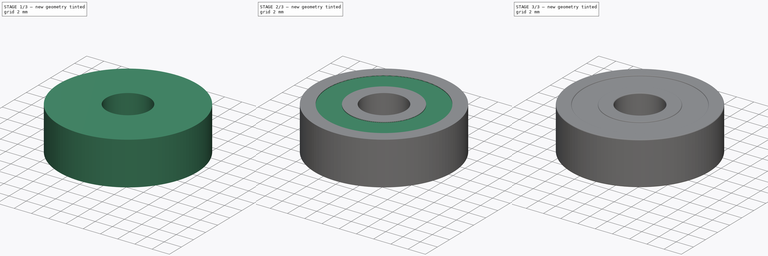
[diagram: build sequence overview — one tinted view per stage of 3, left to right]
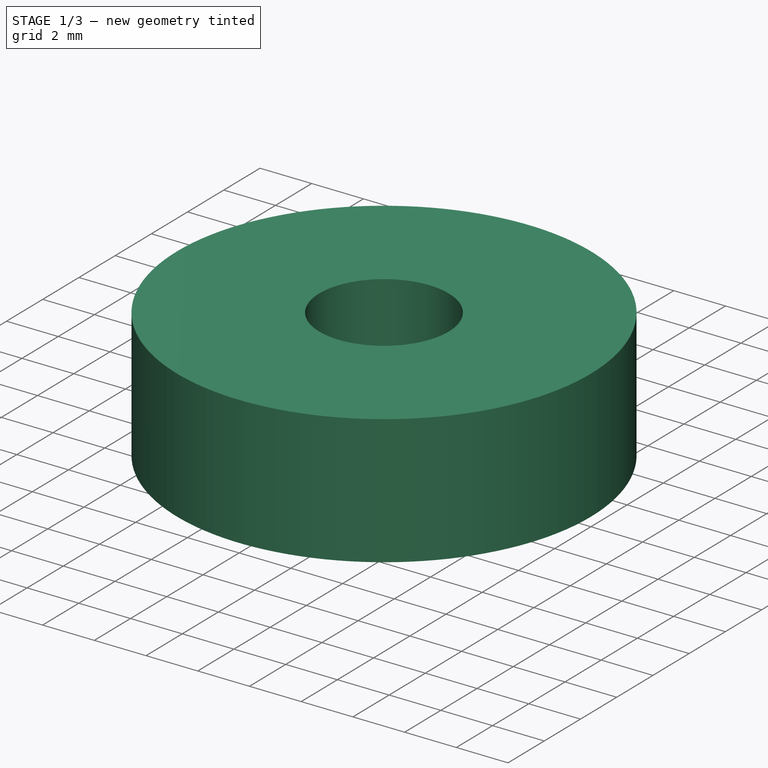
[diagram: stage 1 of 3 — iso view after this stage's code; geometry added in this stage tinted green]
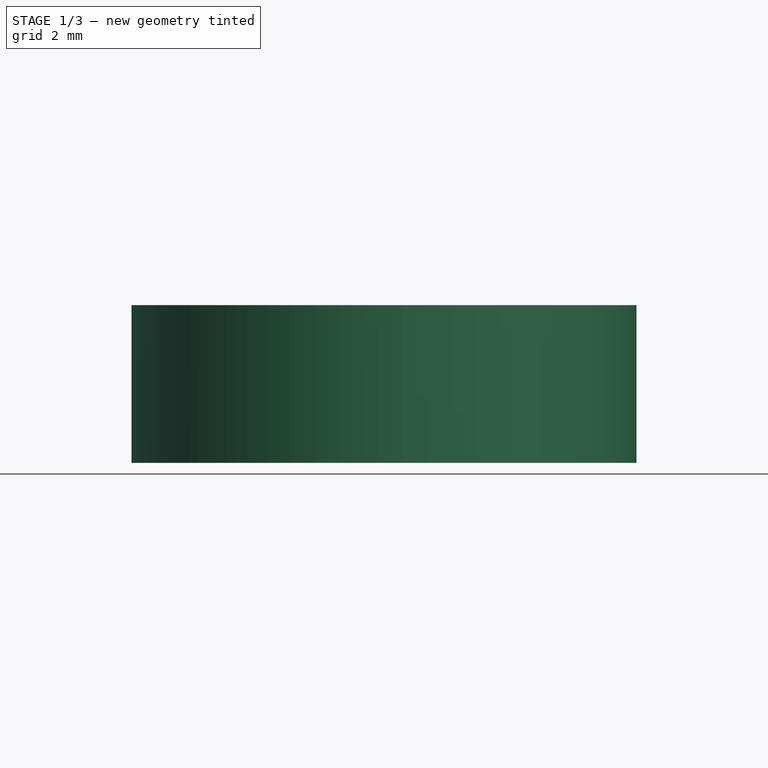
[diagram: stage 1 of 3 — front view after this stage's code; geometry added in this stage tinted green]
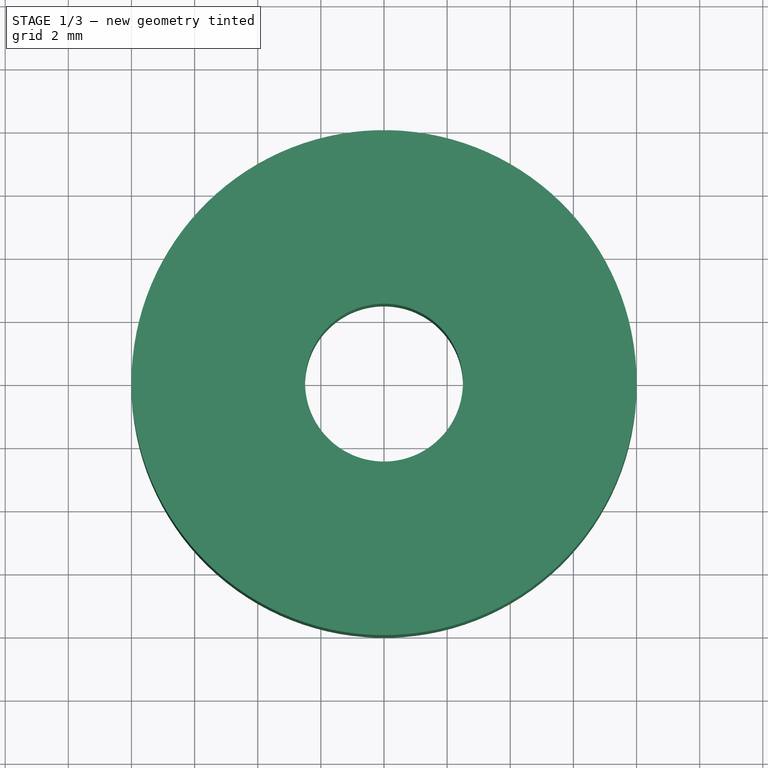
[diagram: stage 1 of 3 — top view after this stage's code; geometry added in this stage tinted green]
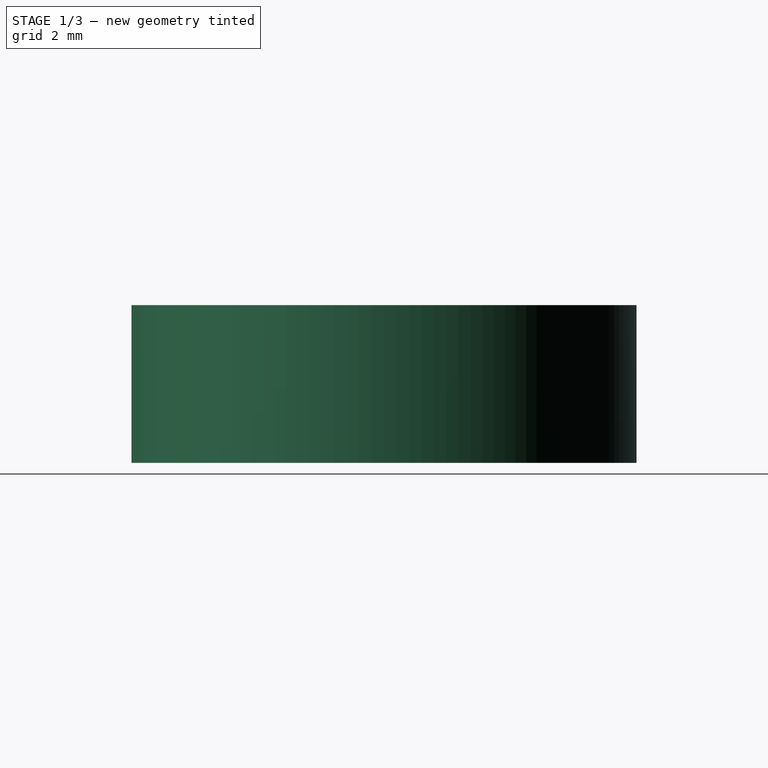
[diagram: stage 1 of 3 — right view after this stage's code; geometry added in this stage tinted green]
FCSTD DOCUMENT  (FreeCAD 0.16R6712 (Git))
Label: DIN625-1_625-ZZ
License: CreativeCommons Attribution-ShareAlike
LicenseURL: http://creativecommons.org/licenses/by-sa/4.0/
objects: Sketcher::SketchObject×4, PartDesign::Pocket×3, App::MeasureDistance×1, PartDesign::Pad×1, PartDesign::Fillet×1, Part::Feature×1
note: 14 computed .brp shape members not serialized (recipe doc carries the construction recipe); baked Part::Feature solids carry a one-line shape summary decoded from their .brp

FEATURE [App::MeasureDistance] Distance  label="Distance: 1.875"
  Distance = 1.87463
  P1 = (4.39378,2.64981,2.46999)
  P2 = (2.83695,1.60597,2.5)
FEATURE [Sketcher::SketchObject] Sketch
  sketch-geometry (1):
    g0: Circle CenterX=0 CenterY=0 CenterZ=0 NormalX=0 NormalY=0 NormalZ=1 Radius=8
  constraints (1):
    c: Radius(g0) = 8
FEATURE [PartDesign::Pad] Pad
  Length = 5
  Length2 = 100
  Sketch = -> Sketch
  Type = 0
FEATURE [Sketcher::SketchObject] Sketch001
  Placement = pos=(0,0,5) rot=(0,0,1;0rad)
  Support = -> Pad [Face3]
  sketch-geometry (1):
    g0: Circle CenterX=0 CenterY=0 CenterZ=0 NormalX=0 NormalY=0 NormalZ=1 Radius=2.5
  constraints (1):
    c: Radius(g0) = 2.5
FEATURE [PartDesign::Pocket] Pocket
  Length = 5
  Sketch = -> Sketch001
  Type = 1
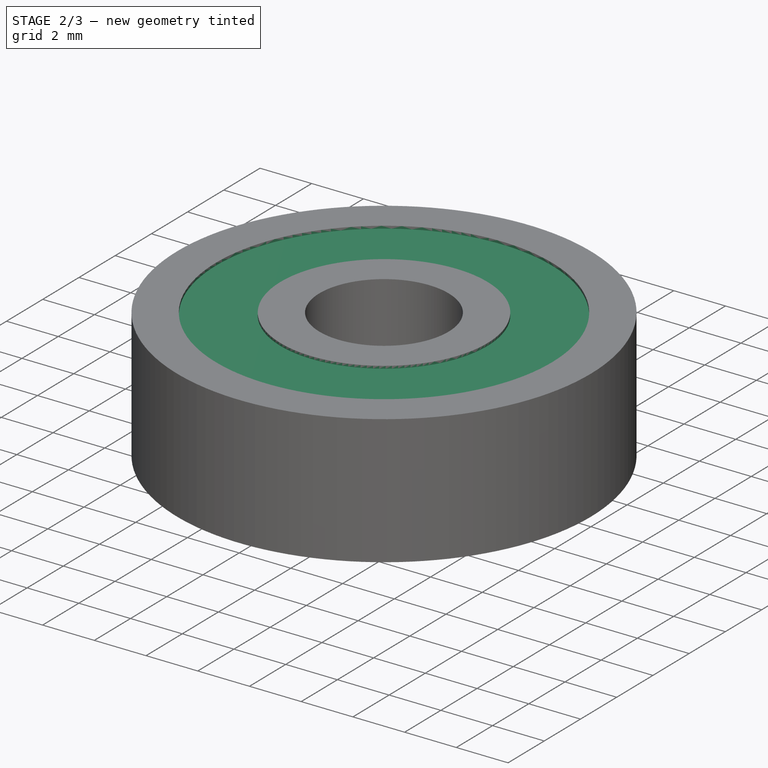
[diagram: stage 2 of 3 — iso view after this stage's code; geometry added in this stage tinted green]
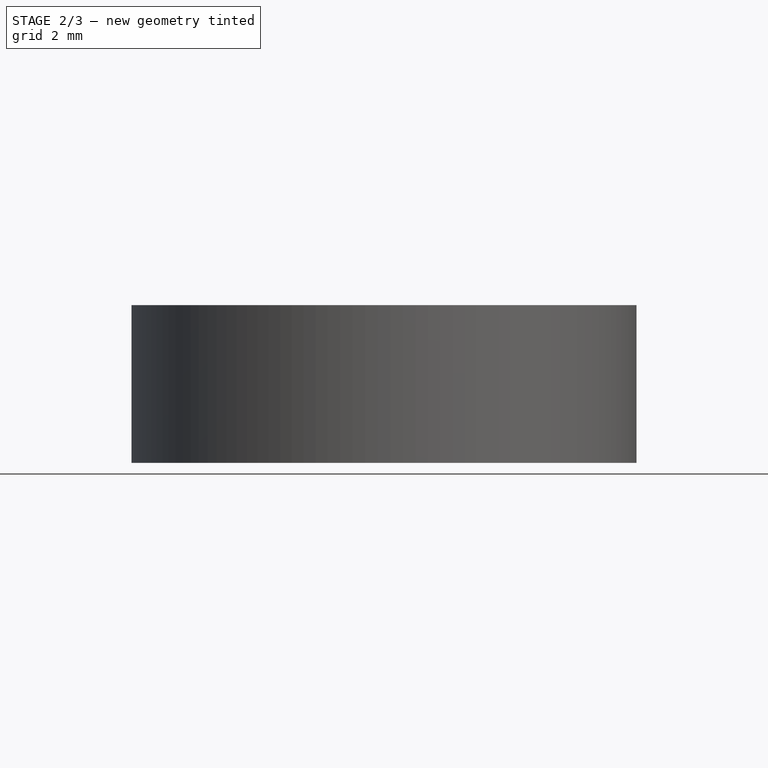
[diagram: stage 2 of 3 — front view after this stage's code; geometry added in this stage tinted green]
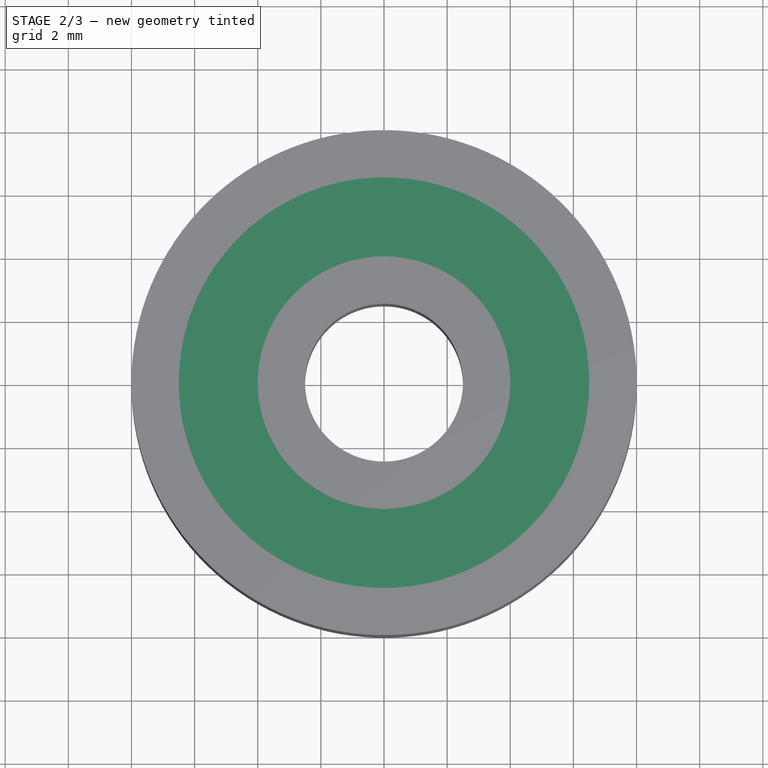
[diagram: stage 2 of 3 — top view after this stage's code; geometry added in this stage tinted green]
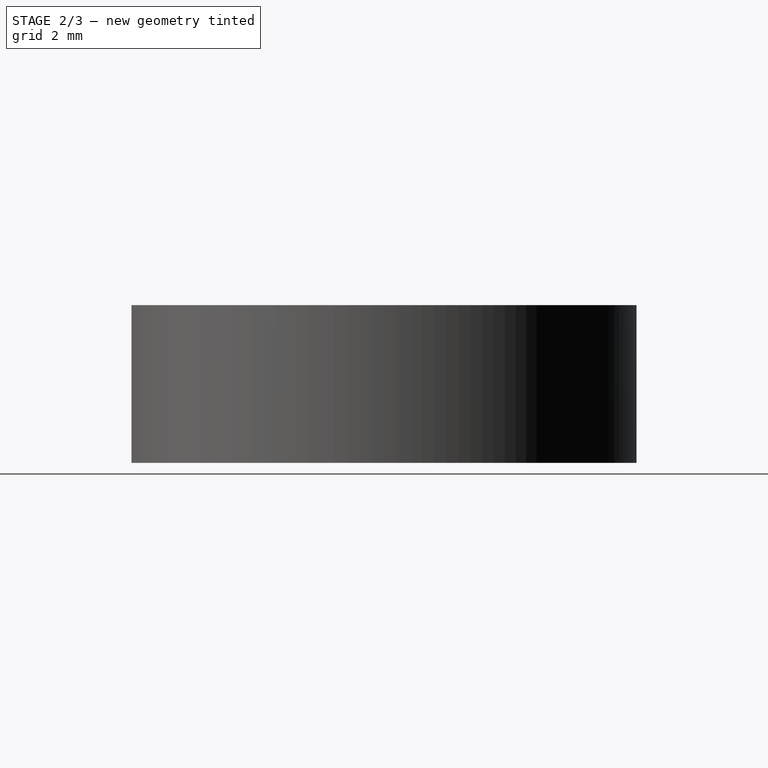
[diagram: stage 2 of 3 — right view after this stage's code; geometry added in this stage tinted green]
FEATURE [Sketcher::SketchObject] Sketch002
  Placement = pos=(0,0,5) rot=(0,0,1;0rad)
  Support = -> Pocket [Face3]
  sketch-geometry (2):
    g0: Circle CenterX=0 CenterY=0 CenterZ=0 NormalX=0 NormalY=0 NormalZ=1 Radius=6.5
    g1: Circle CenterX=0 CenterY=0 CenterZ=0 NormalX=0 NormalY=0 NormalZ=1 Radius=4
  constraints (4):
    c: Coincident(g1,g-1)
    c: Radius(g1) = 4
    c: Radius(g0) = 6.5
    c: Coincident(g0,g-1)
FEATURE [PartDesign::Pocket] Pocket001
  Length = 0.1
  Sketch = -> Sketch002
  Type = 0
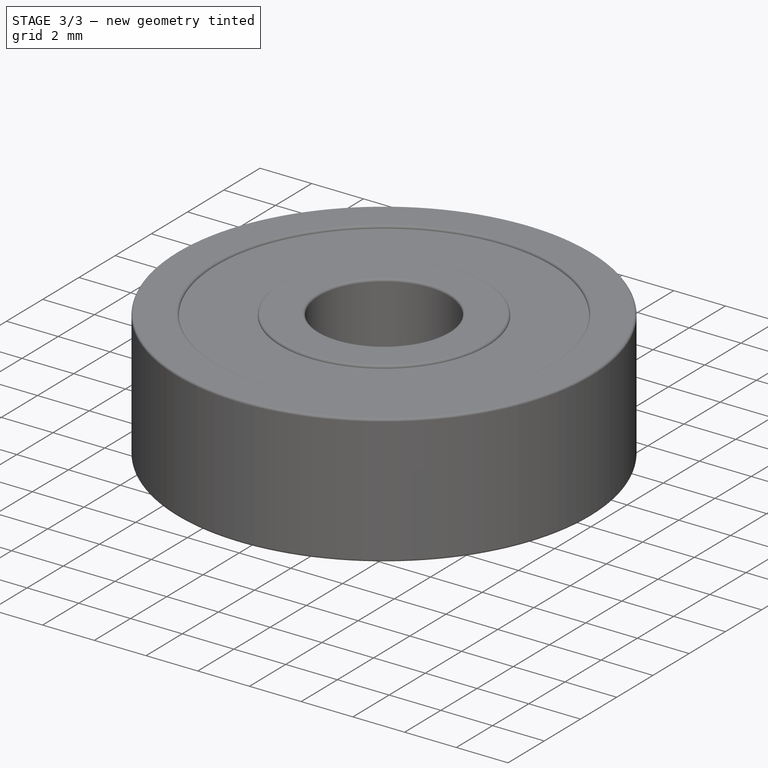
[diagram: stage 3 of 3 — iso view after this stage's code; geometry added in this stage tinted green]
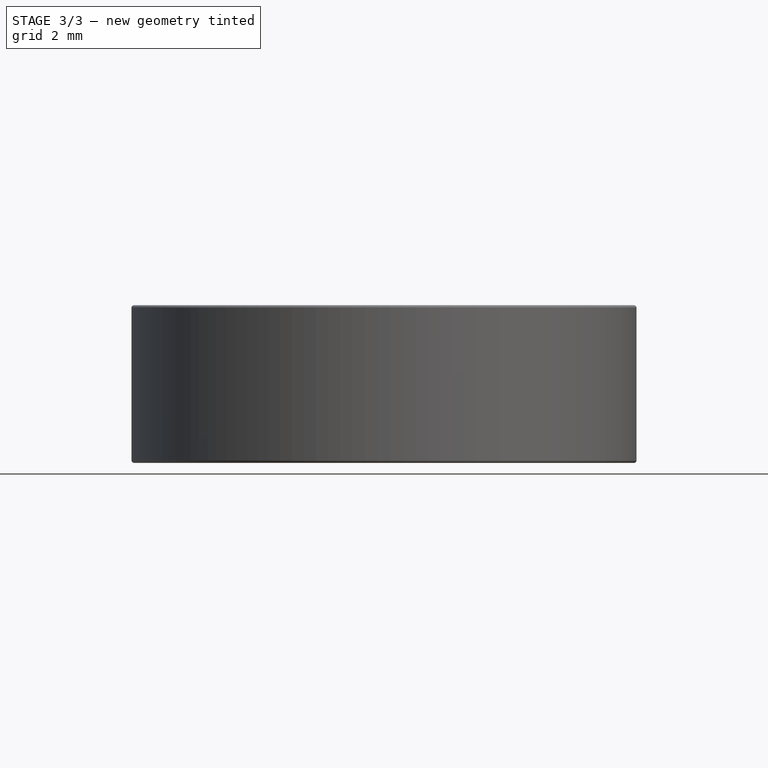
[diagram: stage 3 of 3 — front view after this stage's code; geometry added in this stage tinted green]
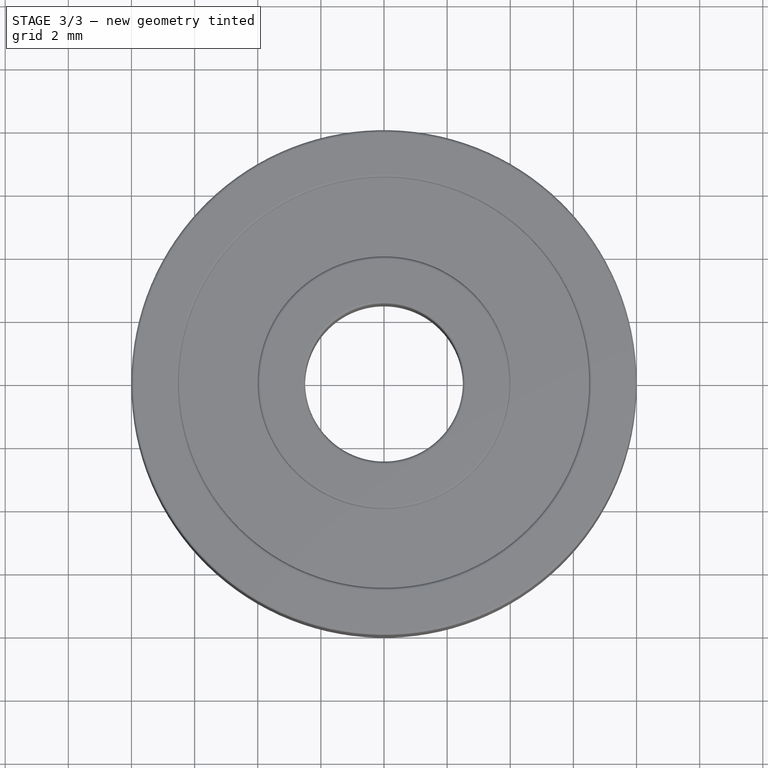
[diagram: stage 3 of 3 — top view after this stage's code; geometry added in this stage tinted green]
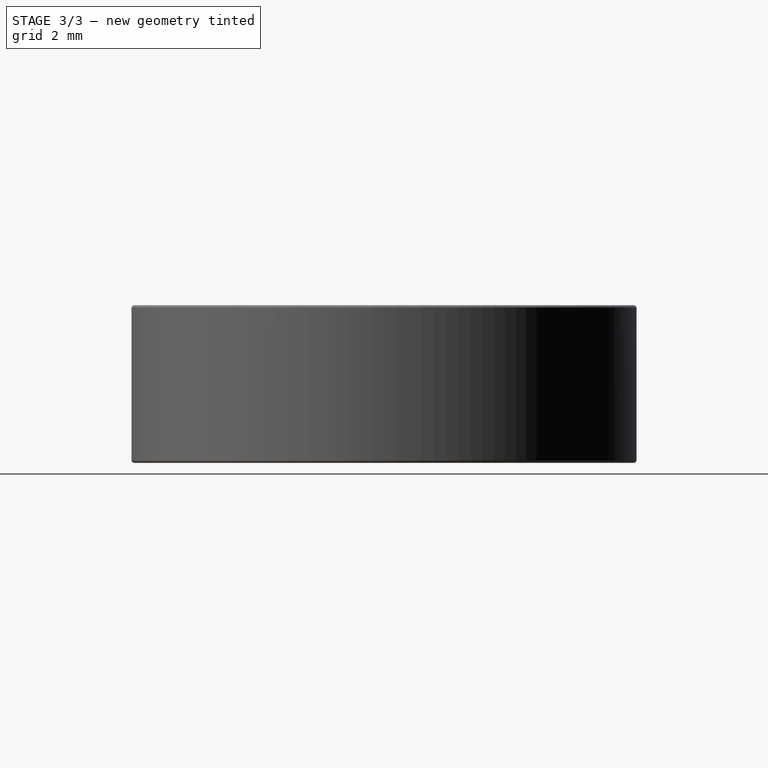
[diagram: stage 3 of 3 — right view after this stage's code; geometry added in this stage tinted green]
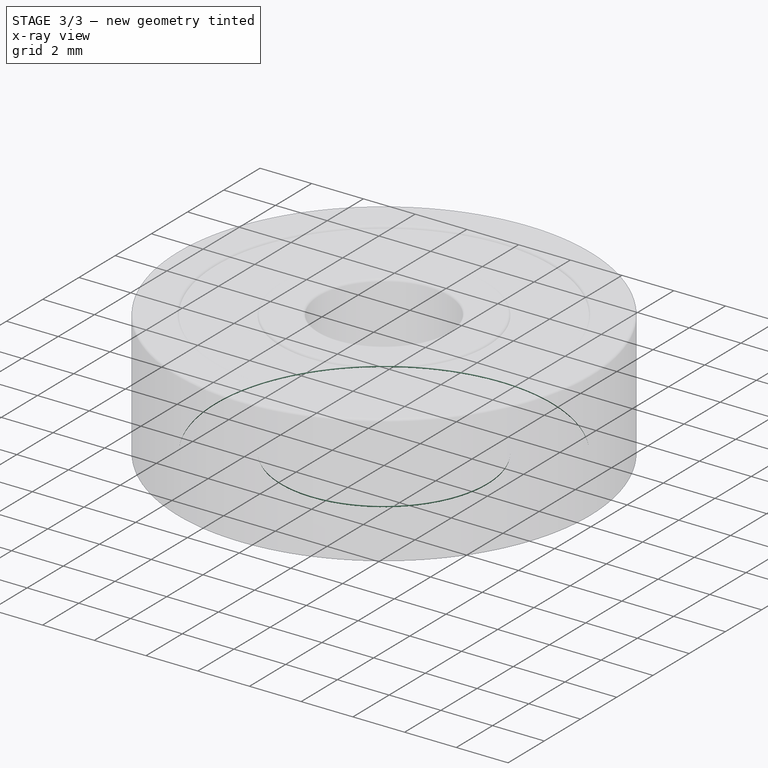
[diagram: stage 3 of 3 — x-ray composite at the iso view; earlier geometry ghosted, this stage's added geometry solid]
FEATURE [Sketcher::SketchObject] Sketch003
  Placement = pos=(0,0,0) rot=(1,0,0;3.14159rad)
  Support = -> Pocket001 [Face2]
  sketch-geometry (2):
    g0: Circle CenterX=0 CenterY=0 CenterZ=0 NormalX=0 NormalY=0 NormalZ=1 Radius=4
    g1: Circle CenterX=0 CenterY=0 CenterZ=0 NormalX=0 NormalY=0 NormalZ=1 Radius=6.5
  constraints (4):
    c: Radius(g0) = 4
    c: Radius(g1) = 6.5
    c: Coincident(g1,g-1)
    c: Coincident(g0,g-1)
FEATURE [PartDesign::Pocket] Pocket002
  Length = 0.1
  Sketch = -> Sketch003
  Type = 0
FEATURE [PartDesign::Fillet] Fillet
  Base = -> Pocket002 [Edge3,Edge5,Edge14,Edge17,Edge2,Edge4,Edge12,Edge16]
  Radius = 0.09
FEATURE [Part::Feature] BOLTS_part001  label="Ball bearing DIN625-1 625-ZZ"
  Placement = pos=(0,0,2.5) rot=(0,0,1;0rad)
  shape: bbox 17.32 x 17.32 x 2.5 mm, 20 faces, 3 solids (baked)
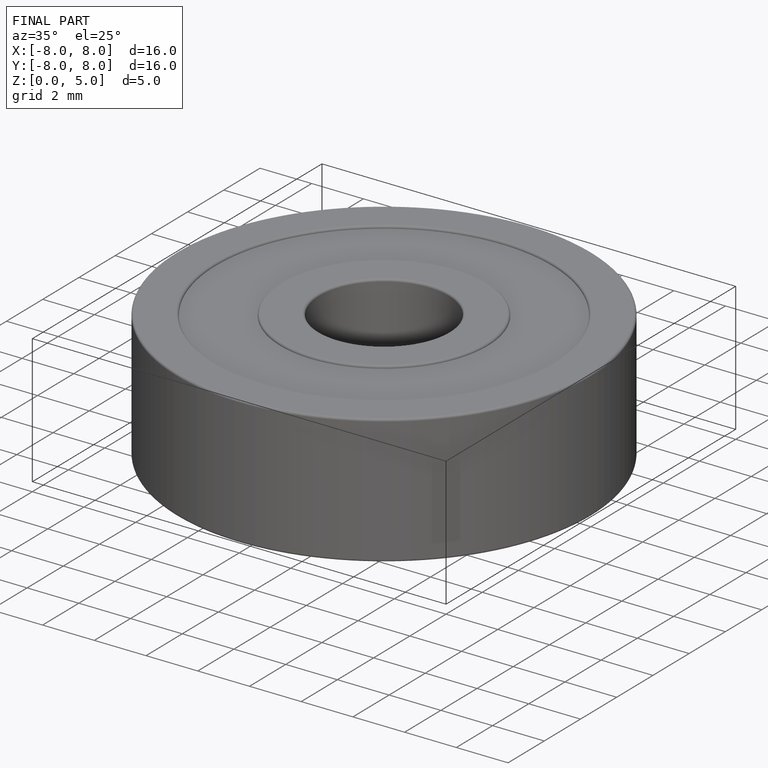
[diagram: finished part — iso view with bounding-box wireframe]
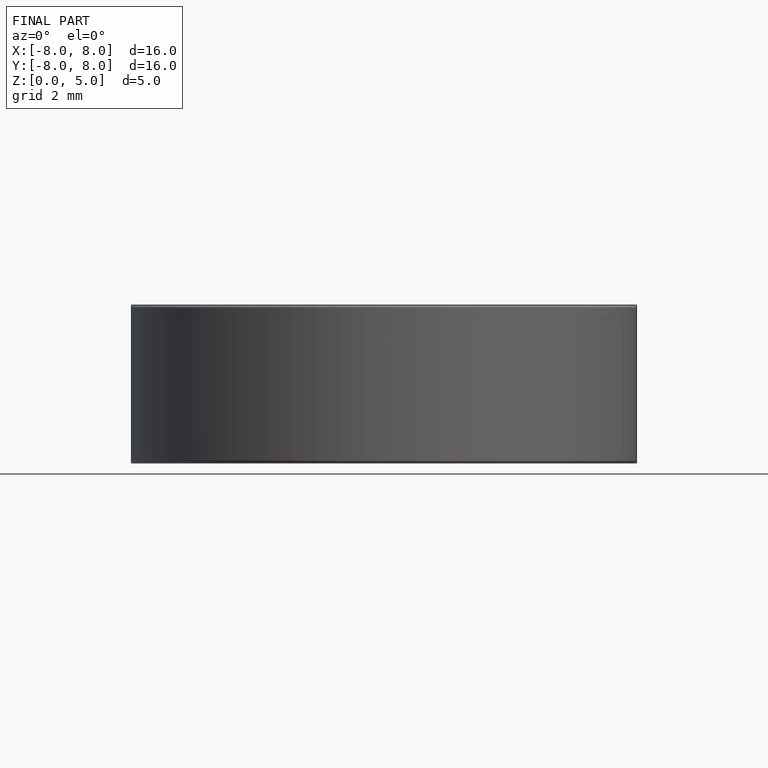
[diagram: finished part — front view with bounding-box wireframe]
